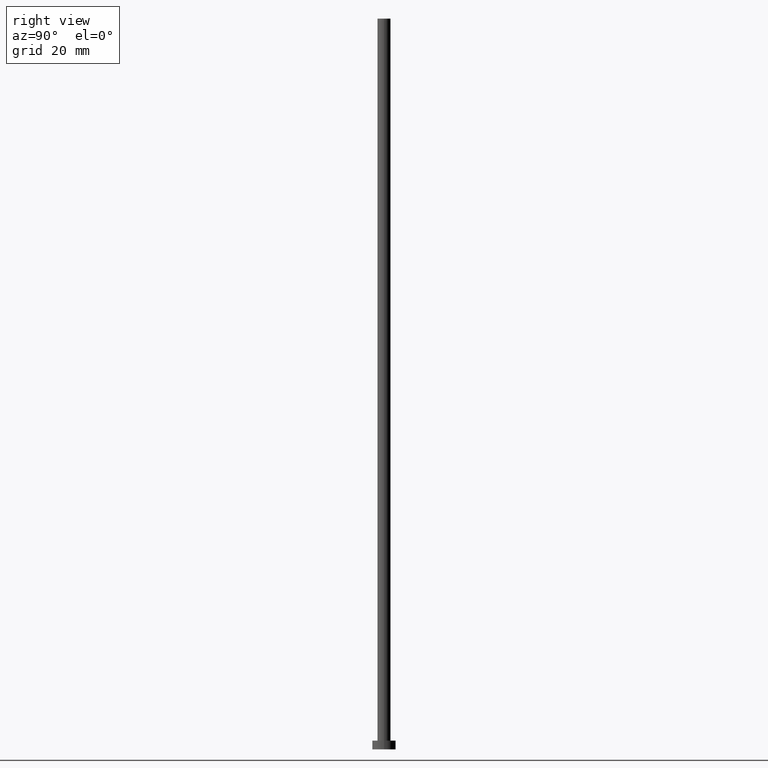
[diagram: clean part render]
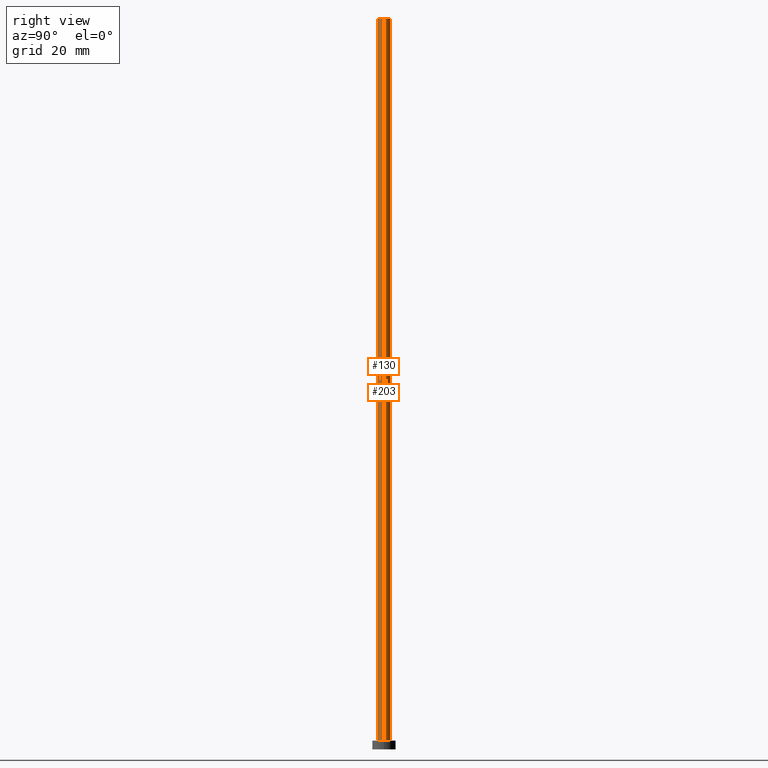
[diagram: same view with one multi-face feature highlighted, each face labeled with its STEP entity id]
A machine part, right view. The highlighted faces form ONE feature: a constant-radius fillet chain: 2 tangent blend faces with common blend radius 2.25 mm. The faces share edges in the B-rep.
Their STEP definitions:
[1] entity #203 (Cylinder):
#1 = CARTESIAN_POINT ( 'NONE',  ( 0.000000000000000000, 0.000000000000000000, 250.0000000000000000 ) ) ;
#7 = CIRCLE ( 'NONE', #230, 2.250000000000000000 ) ;
#32 = EDGE_CURVE ( 'NONE', #102, #41, #7, .T. ) ;
#36 = DIRECTION ( 'NONE',  ( -0.000000000000000000, -0.000000000000000000, -1.000000000000000000 ) ) ;
#38 = AXIS2_PLACEMENT_3D ( 'NONE', #1, #36, #115 ) ;
#41 = VERTEX_POINT ( 'NONE', #60 ) ;
#42 = DIRECTION ( 'NONE',  ( 0.000000000000000000, 0.000000000000000000, 1.000000000000000000 ) ) ;
#44 = VERTEX_POINT ( 'NONE', #136 ) ;
#56 = DIRECTION ( 'NONE',  ( -0.000000000000000000, -0.000000000000000000, -1.000000000000000000 ) ) ;
#57 = FACE_OUTER_BOUND ( 'NONE', #160, .T. ) ;
#60 = CARTESIAN_POINT ( 'NONE',  ( -2.250000000000000000, 0.000000000000000000, 3.000000000000000000 ) ) ;
#65 = VECTOR ( 'NONE', #149, 1000.000000000000000 ) ;
#70 = EDGE_CURVE ( 'NONE', #44, #102, #161, .T. ) ;
#72 = AXIS2_PLACEMENT_3D ( 'NONE', #238, #175, #179 ) ;
#78 = LINE ( 'NONE', #197, #246 ) ;
#83 = ORIENTED_EDGE ( 'NONE', *, *, #154, .F. ) ;
#102 = VERTEX_POINT ( 'NONE', #152 ) ;
#115 = DIRECTION ( 'NONE',  ( -1.000000000000000000, 0.000000000000000000, 0.000000000000000000 ) ) ;
#136 = CARTESIAN_POINT ( 'NONE',  ( 2.250000000000000000, 2.755455298081544285E-16, 250.0000000000000000 ) ) ;
#139 = ORIENTED_EDGE ( 'NONE', *, *, #178, .F. ) ;
#147 = CARTESIAN_POINT ( 'NONE',  ( 2.250000000000000000, 2.755455298081544285E-16, 250.0000000000000000 ) ) ;
#149 = DIRECTION ( 'NONE',  ( -0.000000000000000000, -0.000000000000000000, -1.000000000000000000 ) ) ;
#152 = CARTESIAN_POINT ( 'NONE',  ( 2.250000000000000000, 2.755455298081544285E-16, 3.000000000000000000 ) ) ;
#154 = EDGE_CURVE ( 'NONE', #232, #41, #78, .T. ) ;
#156 = CYLINDRICAL_SURFACE ( 'NONE', #38, 2.250000000000000000 ) ;
#160 = EDGE_LOOP ( 'NONE', ( #139, #164, #244, #83 ) ) ;
#161 = LINE ( 'NONE', #147, #65 ) ;
#164 = ORIENTED_EDGE ( 'NONE', *, *, #70, .T. ) ;
#175 = DIRECTION ( 'NONE',  ( 0.000000000000000000, 0.000000000000000000, 1.000000000000000000 ) ) ;
#178 = EDGE_CURVE ( 'NONE', #44, #232, #180, .T. ) ;
#179 = DIRECTION ( 'NONE',  ( 1.000000000000000000, 0.000000000000000000, 0.000000000000000000 ) ) ;
#180 = CIRCLE ( 'NONE', #72, 2.250000000000000000 ) ;
#182 = DIRECTION ( 'NONE',  ( 1.000000000000000000, 0.000000000000000000, 0.000000000000000000 ) ) ;
#195 = CARTESIAN_POINT ( 'NONE',  ( -2.250000000000000000, 0.000000000000000000, 250.0000000000000000 ) ) ;
#197 = CARTESIAN_POINT ( 'NONE',  ( -2.250000000000000000, 0.000000000000000000, 250.0000000000000000 ) ) ;
#203 = ADVANCED_FACE ( 'NONE', ( #57 ), #156, .T. ) ;
#230 = AXIS2_PLACEMENT_3D ( 'NONE', #239, #42, #182 ) ;
#232 = VERTEX_POINT ( 'NONE', #195 ) ;
#238 = CARTESIAN_POINT ( 'NONE',  ( 0.000000000000000000, 0.000000000000000000, 250.0000000000000000 ) ) ;
#239 = CARTESIAN_POINT ( 'NONE',  ( 0.000000000000000000, 0.000000000000000000, 3.000000000000000000 ) ) ;
#244 = ORIENTED_EDGE ( 'NONE', *, *, #32, .T. ) ;
#246 = VECTOR ( 'NONE', #56, 1000.000000000000000 ) ;
[2] entity #130 (Cylinder):
#4 = DIRECTION ( 'NONE',  ( 1.000000000000000000, 0.000000000000000000, 0.000000000000000000 ) ) ;
#11 = CYLINDRICAL_SURFACE ( 'NONE', #100, 2.250000000000000000 ) ;
#13 = DIRECTION ( 'NONE',  ( -1.000000000000000000, 0.000000000000000000, 0.000000000000000000 ) ) ;
#20 = CIRCLE ( 'NONE', #96, 2.250000000000000000 ) ;
#31 = FACE_OUTER_BOUND ( 'NONE', #206, .T. ) ;
#40 = CARTESIAN_POINT ( 'NONE',  ( 0.000000000000000000, 0.000000000000000000, 250.0000000000000000 ) ) ;
#41 = VERTEX_POINT ( 'NONE', #60 ) ;
#44 = VERTEX_POINT ( 'NONE', #136 ) ;
#45 = CIRCLE ( 'NONE', #225, 2.250000000000000000 ) ;
#47 = EDGE_CURVE ( 'NONE', #41, #102, #20, .T. ) ;
#56 = DIRECTION ( 'NONE',  ( -0.000000000000000000, -0.000000000000000000, -1.000000000000000000 ) ) ;
#60 = CARTESIAN_POINT ( 'NONE',  ( -2.250000000000000000, 0.000000000000000000, 3.000000000000000000 ) ) ;
#61 = EDGE_CURVE ( 'NONE', #232, #44, #45, .T. ) ;
#65 = VECTOR ( 'NONE', #149, 1000.000000000000000 ) ;
#70 = EDGE_CURVE ( 'NONE', #44, #102, #161, .T. ) ;
#78 = LINE ( 'NONE', #197, #246 ) ;
#86 = ORIENTED_EDGE ( 'NONE', *, *, #70, .F. ) ;
#89 = CARTESIAN_POINT ( 'NONE',  ( 0.000000000000000000, 0.000000000000000000, 250.0000000000000000 ) ) ;
#96 = AXIS2_PLACEMENT_3D ( 'NONE', #101, #224, #226 ) ;
#100 = AXIS2_PLACEMENT_3D ( 'NONE', #89, #189, #13 ) ;
#101 = CARTESIAN_POINT ( 'NONE',  ( 0.000000000000000000, 0.000000000000000000, 3.000000000000000000 ) ) ;
#102 = VERTEX_POINT ( 'NONE', #152 ) ;
#121 = ORIENTED_EDGE ( 'NONE', *, *, #154, .T. ) ;
#130 = ADVANCED_FACE ( 'NONE', ( #31 ), #11, .T. ) ;
#136 = CARTESIAN_POINT ( 'NONE',  ( 2.250000000000000000, 2.755455298081544285E-16, 250.0000000000000000 ) ) ;
#143 = ORIENTED_EDGE ( 'NONE', *, *, #47, .T. ) ;
#147 = CARTESIAN_POINT ( 'NONE',  ( 2.250000000000000000, 2.755455298081544285E-16, 250.0000000000000000 ) ) ;
#149 = DIRECTION ( 'NONE',  ( -0.000000000000000000, -0.000000000000000000, -1.000000000000000000 ) ) ;
#152 = CARTESIAN_POINT ( 'NONE',  ( 2.250000000000000000, 2.755455298081544285E-16, 3.000000000000000000 ) ) ;
#154 = EDGE_CURVE ( 'NONE', #232, #41, #78, .T. ) ;
#161 = LINE ( 'NONE', #147, #65 ) ;
#189 = DIRECTION ( 'NONE',  ( -0.000000000000000000, -0.000000000000000000, -1.000000000000000000 ) ) ;
#195 = CARTESIAN_POINT ( 'NONE',  ( -2.250000000000000000, 0.000000000000000000, 250.0000000000000000 ) ) ;
#197 = CARTESIAN_POINT ( 'NONE',  ( -2.250000000000000000, 0.000000000000000000, 250.0000000000000000 ) ) ;
#206 = EDGE_LOOP ( 'NONE', ( #86, #245, #121, #143 ) ) ;
#224 = DIRECTION ( 'NONE',  ( 0.000000000000000000, 0.000000000000000000, 1.000000000000000000 ) ) ;
#225 = AXIS2_PLACEMENT_3D ( 'NONE', #40, #241, #4 ) ;
#226 = DIRECTION ( 'NONE',  ( 1.000000000000000000, 0.000000000000000000, 0.000000000000000000 ) ) ;
#232 = VERTEX_POINT ( 'NONE', #195 ) ;
#241 = DIRECTION ( 'NONE',  ( 0.000000000000000000, 0.000000000000000000, 1.000000000000000000 ) ) ;
#245 = ORIENTED_EDGE ( 'NONE', *, *, #61, .F. ) ;
#246 = VECTOR ( 'NONE', #56, 1000.000000000000000 ) ;